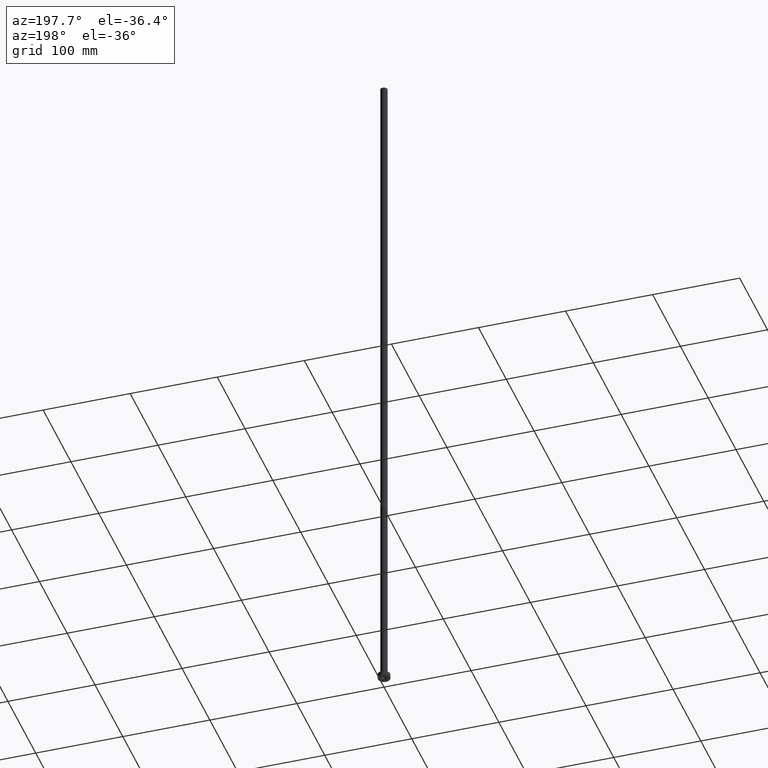
[diagram: clean part render]
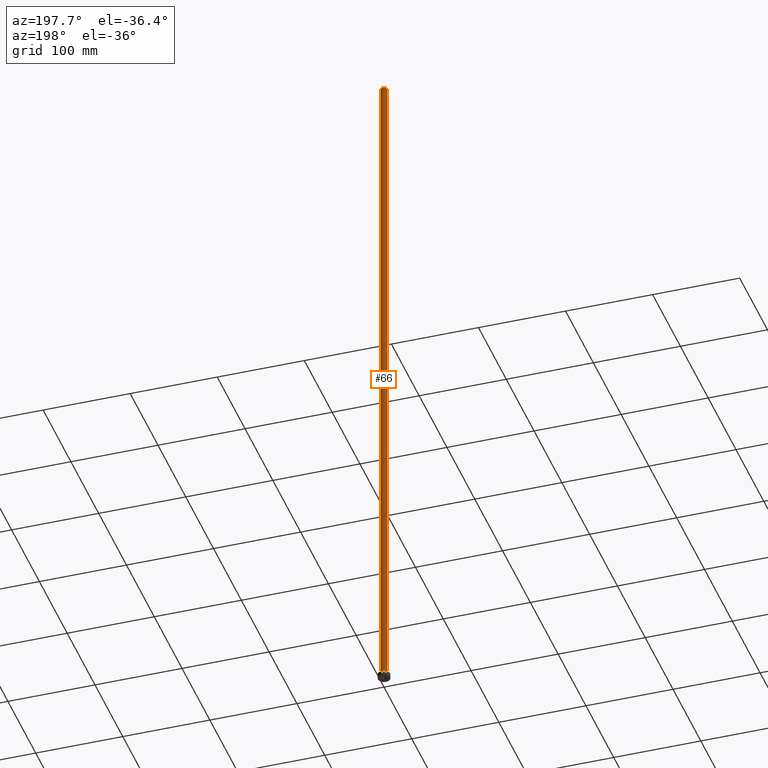
[diagram: same view with one face highlighted and labeled with its STEP entity id]
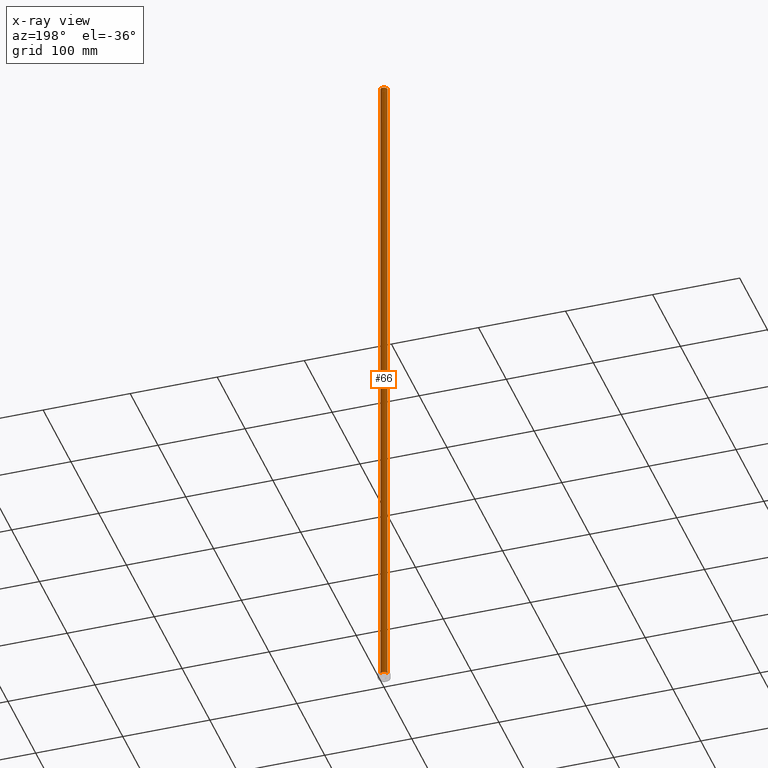
[diagram: x-ray of the same camera — body ghosted, the highlighted face saturated]
A machine part, auxiliary view. The second image highlights one B-rep face of the part: STEP entity #66.
The next image is the same camera in x-ray: the body ghosted, the highlighted face saturated — about 0% of this face is hidden behind the body in this view.
In plain terms, the highlighted cylindrical surface (edge-blend (fillet) strip) has radius 4 mm, axis along (-0, -0, -1).
Its self-contained STEP definition (entity closure, byte-faithful):
#15 = LINE ( 'NONE', #222, #440 ) ;
#18 = CIRCLE ( 'NONE', #460, 4.000000000000000000 ) ;
#26 = EDGE_LOOP ( 'NONE', ( #240, #390, #438, #290 ) ) ;
#32 = DIRECTION ( 'NONE',  ( 0.000000000000000000, 0.000000000000000000, 1.000000000000000000 ) ) ;
#51 = VERTEX_POINT ( 'NONE', #304 ) ;
#61 = DIRECTION ( 'NONE',  ( -1.000000000000000000, 0.000000000000000000, 0.000000000000000000 ) ) ;
#63 = DIRECTION ( 'NONE',  ( 0.000000000000000000, 0.000000000000000000, 1.000000000000000000 ) ) ;
#66 = ADVANCED_FACE ( 'NONE', ( #422 ), #378, .T. ) ;
#86 = AXIS2_PLACEMENT_3D ( 'NONE', #415, #295, #61 ) ;
#94 = AXIS2_PLACEMENT_3D ( 'NONE', #212, #63, #199 ) ;
#104 = CARTESIAN_POINT ( 'NONE',  ( 4.000000000000000000, 4.898587196589412829E-16, 5.499999999999949374 ) ) ;
#121 = DIRECTION ( 'NONE',  ( -0.000000000000000000, -0.000000000000000000, -1.000000000000000000 ) ) ;
#138 = EDGE_CURVE ( 'NONE', #441, #243, #15, .T. ) ;
#191 = CARTESIAN_POINT ( 'NONE',  ( 0.000000000000000000, 0.000000000000000000, 5.499999999999949374 ) ) ;
#199 = DIRECTION ( 'NONE',  ( 1.000000000000000000, 0.000000000000000000, 0.000000000000000000 ) ) ;
#208 = EDGE_CURVE ( 'NONE', #51, #358, #349, .T. ) ;
#212 = CARTESIAN_POINT ( 'NONE',  ( 0.000000000000000000, 0.000000000000000000, 800.0000000000000000 ) ) ;
#215 = CIRCLE ( 'NONE', #94, 4.000000000000000000 ) ;
#222 = CARTESIAN_POINT ( 'NONE',  ( -4.000000000000000000, 0.000000000000000000, 800.0000000000000000 ) ) ;
#240 = ORIENTED_EDGE ( 'NONE', *, *, #405, .F. ) ;
#243 = VERTEX_POINT ( 'NONE', #328 ) ;
#249 = EDGE_CURVE ( 'NONE', #358, #243, #18, .T. ) ;
#250 = CARTESIAN_POINT ( 'NONE',  ( -4.000000000000000000, 0.000000000000000000, 800.0000000000000000 ) ) ;
#290 = ORIENTED_EDGE ( 'NONE', *, *, #138, .F. ) ;
#295 = DIRECTION ( 'NONE',  ( -0.000000000000000000, -0.000000000000000000, -1.000000000000000000 ) ) ;
#304 = CARTESIAN_POINT ( 'NONE',  ( 4.000000000000000000, 4.898587196589412829E-16, 800.0000000000000000 ) ) ;
#328 = CARTESIAN_POINT ( 'NONE',  ( -4.000000000000000000, 0.000000000000000000, 5.499999999999949374 ) ) ;
#339 = DIRECTION ( 'NONE',  ( 1.000000000000000000, 0.000000000000000000, 0.000000000000000000 ) ) ;
#349 = LINE ( 'NONE', #359, #368 ) ;
#358 = VERTEX_POINT ( 'NONE', #104 ) ;
#359 = CARTESIAN_POINT ( 'NONE',  ( 4.000000000000000000, 4.898587196589412829E-16, 800.0000000000000000 ) ) ;
#367 = DIRECTION ( 'NONE',  ( -0.000000000000000000, -0.000000000000000000, -1.000000000000000000 ) ) ;
#368 = VECTOR ( 'NONE', #367, 1000.000000000000000 ) ;
#378 = CYLINDRICAL_SURFACE ( 'NONE', #86, 4.000000000000000000 ) ;
#390 = ORIENTED_EDGE ( 'NONE', *, *, #208, .T. ) ;
#405 = EDGE_CURVE ( 'NONE', #51, #441, #215, .T. ) ;
#415 = CARTESIAN_POINT ( 'NONE',  ( 0.000000000000000000, 0.000000000000000000, 800.0000000000000000 ) ) ;
#422 = FACE_OUTER_BOUND ( 'NONE', #26, .T. ) ;
#438 = ORIENTED_EDGE ( 'NONE', *, *, #249, .T. ) ;
#440 = VECTOR ( 'NONE', #121, 1000.000000000000000 ) ;
#441 = VERTEX_POINT ( 'NONE', #250 ) ;
#460 = AXIS2_PLACEMENT_3D ( 'NONE', #191, #32, #339 ) ;